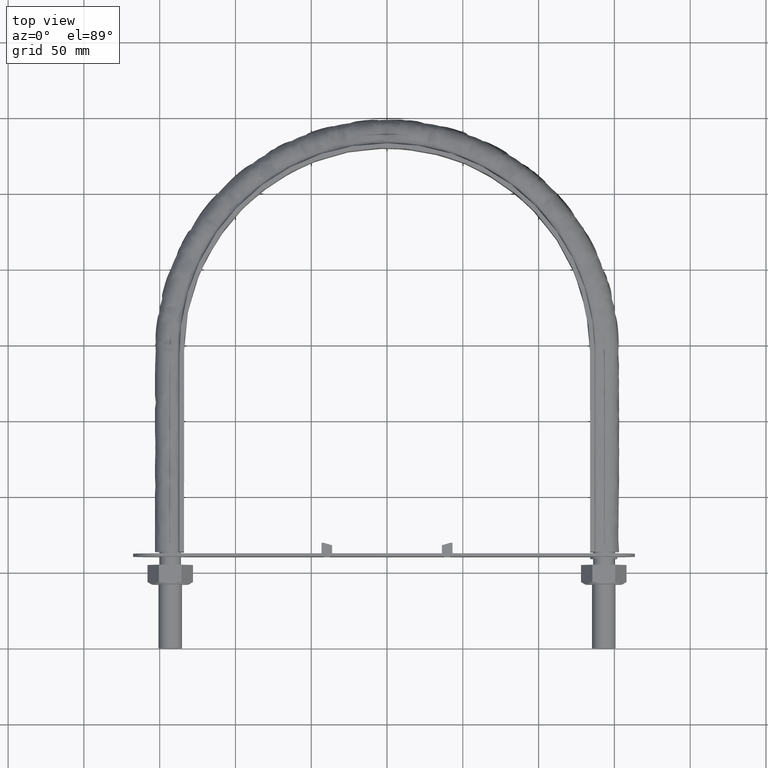
[diagram: clean part render]
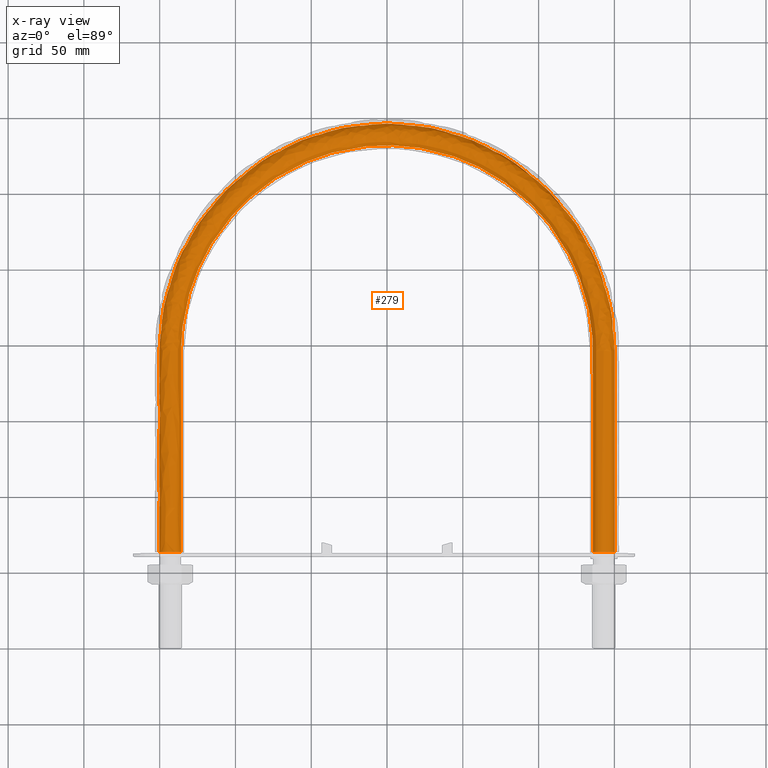
[diagram: x-ray — body ghosted, one internal face saturated and labeled with its STEP entity id]
A machine part, top view, then the same camera in x-ray: the body is ghosted and one INTERNAL B-rep face — a face not visible from any outside direction — is saturated and labeled: STEP entity #279.
In plain terms, the highlighted face is a freeform B-spline surface patch.
Its self-contained STEP definition (entity closure, byte-faithful):
#279 = ADVANCED_FACE( '', ( #391, #392 ), #393, .T. );
#391 = FACE_OUTER_BOUND( '', #1346, .T. );
#392 = FACE_OUTER_BOUND( '', #1347, .T. );
#393 = B_SPLINE_SURFACE_WITH_KNOTS( '', 3, 3, ( ( #1348, #1349, #1350, #1351, #1352, #1353, #1354, #1355, #1356, #1357, #1358, #1359, #1360, #1361, #1362, #1363, #1364 ), ( #1365, #1366, #1367, #1368, #1369, #1370, #1371, #1372, #1373, #1374, #1375, #1376, #1377, #1378, #1379, #1380, #1381 ), ( #1382, #1383, #1384, #1385, #1386, #1387, #1388, #1389, #1390, #1391, #1392, #1393, #1394, #1395, #1396, #1397, #1398 ), ( #1399, #1400, #1401, #1402, #1403, #1404, #1405, #1406, #1407, #1408, #1409, #1410, #1411, #1412, #1413, #1414, #1415 ), ( #1416, #1417, #1418, #1419, #1420, #1421, #1422, #1423, #1424, #1425, #1426, #1427, #1428, #1429, #1430, #1431, #1432 ), ( #1433, #1434, #1435, #1436, #1437, #1438, #1439, #1440, #1441, #1442, #1443, #1444, #1445, #1446, #1447, #1448, #1449 ), ( #1450, #1451, #1452, #1453, #1454, #1455, #1456, #1457, #1458, #1459, #1460, #1461, #1462, #1463, #1464, #1465, #1466 ), ( #1467, #1468, #1469, #1470, #1471, #1472, #1473, #1474, #1475, #1476, #1477, #1478, #1479, #1480, #1481, #1482, #1483 ), ( #1484, #1485, #1486, #1487, #1488, #1489, #1490, #1491, #1492, #1493, #1494, #1495, #1496, #1497, #1498, #1499, #1500 ), ( #1501, #1502, #1503, #1504, #1505, #1506, #1507, #1508, #1509, #1510, #1511, #1512, #1513, #1514, #1515, #1516, #1517 ), ( #1518, #1519, #1520, #1521, #1522, #1523, #1524, #1525, #1526, #1527, #1528, #1529, #1530, #1531, #1532, #1533, #1534 ) ), .UNSPECIFIED., .T., .F., .F., ( 2, 1, 1, 1, 1, 1, 1, 1, 1, 1, 1, 1, 2 ), ( 4, 3, 1, 1, 1, 1, 1, 1, 1, 3, 4 ), ( -0.250000000000000, -0.125000000000000, 0.000000000000000, 0.125000000000000, 0.250000000000000, 0.375000000000000, 0.500000000000000, 0.625000000000000, 0.750000000000000, 0.875000000000000, 1.00000000000000, 1.12500000000000, 1.25000000000000 ), ( 0.000000000000000, 1.00000000000000, 2.00000000000000, 3.00000000000000, 4.00000000000000, 5.00000000000000, 6.00000000000000, 7.00000000000000, 8.00000000000000, 9.00000000000000, 10.0000000000000 ), .UNSPECIFIED. );
#1346 = EDGE_LOOP( '', ( #2007, #2008, #2009, #2010, #2011, #2012, #2013, #2014 ) );
#1347 = EDGE_LOOP( '', ( #2015, #2016, #2017, #2018, #2019, #2020, #2021, #2022 ) );
#1348 = CARTESIAN_POINT( '', ( 137.436357463272, 54.9500000000000, -5.56364253672769 ) );
#1349 = CARTESIAN_POINT( '', ( 137.436357463272, 101.983333333333, -5.56364253672769 ) );
#1350 = CARTESIAN_POINT( '', ( 137.436357463272, 149.016666666667, -5.56364253672769 ) );
#1351 = CARTESIAN_POINT( '', ( 137.436357463272, 196.050000000000, -5.56364253672769 ) );
#1352 = CARTESIAN_POINT( '', ( 137.436357463272, 214.028352444625, -5.56364253672768 ) );
#1353 = CARTESIAN_POINT( '', ( 130.280303553579, 250.018327534897, -5.56364253672768 ) );
#1354 = CARTESIAN_POINT( '', ( 99.7122274668988, 295.761026995728, -5.56364253672770 ) );
#1355 = CARTESIAN_POINT( '', ( 53.9638686419761, 326.330646545342, -5.56364253672768 ) );
#1356 = CARTESIAN_POINT( '', ( 9.67882489103289E-014, 337.064212922238, -5.56364253672769 ) );
#1357 = CARTESIAN_POINT( '', ( -53.9638686419760, 326.330646545342, -5.56364253672769 ) );
#1358 = CARTESIAN_POINT( '', ( -99.7122274668987, 295.761026995728, -5.56364253672768 ) );
#1359 = CARTESIAN_POINT( '', ( -130.280303553579, 250.018327534896, -5.56364253672769 ) );
#1360 = CARTESIAN_POINT( '', ( -137.436357463272, 214.028352444625, -5.56364253672769 ) );
#1361 = CARTESIAN_POINT( '', ( -137.436357463272, 196.050000000000, -5.56364253672769 ) );
#1362 = CARTESIAN_POINT( '', ( -137.436357463272, 149.016666666667, -5.56364253672769 ) );
#1363 = CARTESIAN_POINT( '', ( -137.436357463272, 101.983333333333, -5.56364253672769 ) );
#1364 = CARTESIAN_POINT( '', ( -137.436357463272, 54.9500000000001, -5.56364253672769 ) );
#1365 = CARTESIAN_POINT( '', ( 135.131821268364, 54.9500000000000, 0.000000000000000 ) );
#1366 = CARTESIAN_POINT( '', ( 135.131821268364, 101.983333333333, 0.000000000000000 ) );
#1367 = CARTESIAN_POINT( '', ( 135.131821268364, 149.016666666667, 0.000000000000000 ) );
#1368 = CARTESIAN_POINT( '', ( 135.131821268364, 196.050000000000, 0.000000000000000 ) );
#1369 = CARTESIAN_POINT( '', ( 135.131821268364, 213.722751944464, 0.000000000000000 ) );
#1370 = CARTESIAN_POINT( '', ( 128.095760245211, 249.115307002900, 0.000000000000000 ) );
#1371 = CARTESIAN_POINT( '', ( 98.0402504041058, 294.088552681494, 0.000000000000000 ) );
#1372 = CARTESIAN_POINT( '', ( 53.0590011760586, 324.146245308814, 0.000000000000000 ) );
#1373 = CARTESIAN_POINT( '', ( 1.03437571945879E-013, 334.699609248139, 0.000000000000000 ) );
#1374 = CARTESIAN_POINT( '', ( -53.0590011760586, 324.146245308814, 0.000000000000000 ) );
#1375 = CARTESIAN_POINT( '', ( -98.0402504041056, 294.088552681494, 0.000000000000000 ) );
#1376 = CARTESIAN_POINT( '', ( -128.095760245211, 249.115307002900, 0.000000000000000 ) );
#1377 = CARTESIAN_POINT( '', ( -135.131821268364, 213.722751944464, 0.000000000000000 ) );
#1378 = CARTESIAN_POINT( '', ( -135.131821268364, 196.050000000000, 0.000000000000000 ) );
#1379 = CARTESIAN_POINT( '', ( -135.131821268364, 149.016666666667, 0.000000000000000 ) );
#1380 = CARTESIAN_POINT( '', ( -135.131821268364, 101.983333333333, 0.000000000000000 ) );
#1381 = CARTESIAN_POINT( '', ( -135.131821268364, 54.9500000000001, 0.000000000000000 ) );
#1382 = CARTESIAN_POINT( '', ( 137.436357463272, 54.9500000000000, 5.56364253672769 ) );
#1383 = CARTESIAN_POINT( '', ( 137.436357463272, 101.983333333333, 5.56364253672769 ) );
#1384 = CARTESIAN_POINT( '', ( 137.436357463272, 149.016666666667, 5.56364253672769 ) );
#1385 = CARTESIAN_POINT( '', ( 137.436357463272, 196.050000000000, 5.56364253672769 ) );
#1386 = CARTESIAN_POINT( '', ( 137.436357463272, 214.028352444625, 5.56364253672769 ) );
#1387 = CARTESIAN_POINT( '', ( 130.280303553579, 250.018327534897, 5.56364253672769 ) );
#1388 = CARTESIAN_POINT( '', ( 99.7122274668988, 295.761026995728, 5.56364253672770 ) );
#1389 = CARTESIAN_POINT( '', ( 53.9638686419761, 326.330646545342, 5.56364253672768 ) );
#1390 = CARTESIAN_POINT( '', ( 1.00257695862283E-013, 337.064212922238, 5.56364253672769 ) );
#1391 = CARTESIAN_POINT( '', ( -53.9638686419760, 326.330646545342, 5.56364253672769 ) );
#1392 = CARTESIAN_POINT( '', ( -99.7122274668987, 295.761026995728, 5.56364253672769 ) );
#1393 = CARTESIAN_POINT( '', ( -130.280303553579, 250.018327534896, 5.56364253672769 ) );
#1394 = CARTESIAN_POINT( '', ( -137.436357463272, 214.028352444625, 5.56364253672769 ) );
#1395 = CARTESIAN_POINT( '', ( -137.436357463272, 196.050000000000, 5.56364253672769 ) );
#1396 = CARTESIAN_POINT( '', ( -137.436357463272, 149.016666666667, 5.56364253672769 ) );
#1397 = CARTESIAN_POINT( '', ( -137.436357463272, 101.983333333333, 5.56364253672769 ) );
#1398 = CARTESIAN_POINT( '', ( -137.436357463272, 54.9500000000001, 5.56364253672769 ) );
#1399 = CARTESIAN_POINT( '', ( 143.000000000000, 54.9500000000000, 7.86817873163615 ) );
#1400 = CARTESIAN_POINT( '', ( 143.000000000000, 101.983333333333, 7.86817873163615 ) );
#1401 = CARTESIAN_POINT( '', ( 143.000000000000, 149.016666666667, 7.86817873163615 ) );
#1402 = CARTESIAN_POINT( '', ( 143.000000000000, 196.050000000000, 7.86817873163615 ) );
#1403 = CARTESIAN_POINT( '', ( 143.000000000000, 214.766137316781, 7.86817873163615 ) );
#1404 = CARTESIAN_POINT( '', ( 135.554257636233, 252.198411950344, 7.86817873163615 ) );
#1405 = CARTESIAN_POINT( '', ( 103.748737167870, 299.798737167870, 7.86817873163616 ) );
#1406 = CARTESIAN_POINT( '', ( 56.1484119503442, 331.604257636232, 7.86817873163614 ) );
#1407 = CARTESIAN_POINT( '', ( 9.40178878760316E-014, 342.772871181884, 7.86817873163615 ) );
#1408 = CARTESIAN_POINT( '', ( -56.1484119503442, 331.604257636232, 7.86817873163616 ) );
#1409 = CARTESIAN_POINT( '', ( -103.748737167870, 299.798737167870, 7.86817873163615 ) );
#1410 = CARTESIAN_POINT( '', ( -135.554257636232, 252.198411950344, 7.86817873163615 ) );
#1411 = CARTESIAN_POINT( '', ( -143.000000000000, 214.766137316781, 7.86817873163615 ) );
#1412 = CARTESIAN_POINT( '', ( -143.000000000000, 196.050000000000, 7.86817873163615 ) );
#1413 = CARTESIAN_POINT( '', ( -143.000000000000, 149.016666666667, 7.86817873163615 ) );
#1414 = CARTESIAN_POINT( '', ( -143.000000000000, 101.983333333333, 7.86817873163615 ) );
#1415 = CARTESIAN_POINT( '', ( -143.000000000000, 54.9500000000001, 7.86817873163615 ) );
#1416 = CARTESIAN_POINT( '', ( 148.563642536728, 54.9500000000000, 5.56364253672769 ) );
#1417 = CARTESIAN_POINT( '', ( 148.563642536728, 101.983333333333, 5.56364253672769 ) );
#1418 = CARTESIAN_POINT( '', ( 148.563642536728, 149.016666666667, 5.56364253672769 ) );
#1419 = CARTESIAN_POINT( '', ( 148.563642536728, 196.050000000000, 5.56364253672769 ) );
#1420 = CARTESIAN_POINT( '', ( 148.563642536728, 215.503922188938, 5.56364253672769 ) );
#1421 = CARTESIAN_POINT( '', ( 140.828211718886, 254.378496365792, 5.56364253672769 ) );
#1422 = CARTESIAN_POINT( '', ( 107.785246868842, 303.836447340013, 5.56364253672770 ) );
#1423 = CARTESIAN_POINT( '', ( 58.3329552587123, 336.877868727123, 5.56364253672768 ) );
#1424 = CARTESIAN_POINT( '', ( 8.43086329378271E-014, 348.481529441530, 5.56364253672769 ) );
#1425 = CARTESIAN_POINT( '', ( -58.3329552587123, 336.877868727123, 5.56364253672769 ) );
#1426 = CARTESIAN_POINT( '', ( -107.785246868842, 303.836447340013, 5.56364253672769 ) );
#1427 = CARTESIAN_POINT( '', ( -140.828211718886, 254.378496365792, 5.56364253672769 ) );
#1428 = CARTESIAN_POINT( '', ( -148.563642536728, 215.503922188938, 5.56364253672769 ) );
#1429 = CARTESIAN_POINT( '', ( -148.563642536728, 196.050000000000, 5.56364253672769 ) );
#1430 = CARTESIAN_POINT( '', ( -148.563642536728, 149.016666666667, 5.56364253672769 ) );
#1431 = CARTESIAN_POINT( '', ( -148.563642536728, 101.983333333333, 5.56364253672769 ) );
#1432 = CARTESIAN_POINT( '', ( -148.563642536728, 54.9500000000001, 5.56364253672769 ) );
#1433 = CARTESIAN_POINT( '', ( 150.868178731636, 54.9500000000000, 9.63542166777172E-016 ) );
#1434 = CARTESIAN_POINT( '', ( 150.868178731636, 101.983333333333, 9.63542166777172E-016 ) );
#1435 = CARTESIAN_POINT( '', ( 150.868178731636, 149.016666666667, 9.63542166777172E-016 ) );
#1436 = CARTESIAN_POINT( '', ( 150.868178731636, 196.050000000000, 9.63542166777172E-016 ) );
#1437 = CARTESIAN_POINT( '', ( 150.868178731636, 215.809522689099, 9.63542166777172E-016 ) );
#1438 = CARTESIAN_POINT( '', ( 143.012755027254, 255.281516897789, 9.63542166777172E-016 ) );
#1439 = CARTESIAN_POINT( '', ( 109.457223931635, 305.508921654246, 9.63542166777174E-016 ) );
#1440 = CARTESIAN_POINT( '', ( 59.2378227246298, 339.062269963651, 9.63542166777171E-016 ) );
#1441 = CARTESIAN_POINT( '', ( 8.11287568542308E-014, 350.846133115629, 9.63542166777172E-016 ) );
#1442 = CARTESIAN_POINT( '', ( -59.2378227246298, 339.062269963651, 9.63542166777173E-016 ) );
#1443 = CARTESIAN_POINT( '', ( -109.457223931635, 305.508921654246, 9.63542166777172E-016 ) );
#1444 = CARTESIAN_POINT( '', ( -143.012755027254, 255.281516897788, 9.63542166777172E-016 ) );
#1445 = CARTESIAN_POINT( '', ( -150.868178731636, 215.809522689099, 9.63542166777172E-016 ) );
#1446 = CARTESIAN_POINT( '', ( -150.868178731636, 196.050000000000, 9.63542166777172E-016 ) );
#1447 = CARTESIAN_POINT( '', ( -150.868178731636, 149.016666666667, 9.63542166777172E-016 ) );
#1448 = CARTESIAN_POINT( '', ( -150.868178731636, 101.983333333333, 9.63542166777172E-016 ) );
#1449 = CARTESIAN_POINT( '', ( -150.868178731636, 54.9500000000001, 9.63542166777172E-016 ) );
#1450 = CARTESIAN_POINT( '', ( 148.563642536728, 54.9500000000000, -5.56364253672769 ) );
#1451 = CARTESIAN_POINT( '', ( 148.563642536728, 101.983333333333, -5.56364253672769 ) );
#1452 = CARTESIAN_POINT( '', ( 148.563642536728, 149.016666666667, -5.56364253672769 ) );
#1453 = CARTESIAN_POINT( '', ( 148.563642536728, 196.050000000000, -5.56364253672769 ) );
#1454 = CARTESIAN_POINT( '', ( 148.563642536728, 215.503922188938, -5.56364253672769 ) );
#1455 = CARTESIAN_POINT( '', ( 140.828211718886, 254.378496365792, -5.56364253672769 ) );
#1456 = CARTESIAN_POINT( '', ( 107.785246868842, 303.836447340013, -5.56364253672770 ) );
#1457 = CARTESIAN_POINT( '', ( 58.3329552587123, 336.877868727123, -5.56364253672768 ) );
#1458 = CARTESIAN_POINT( '', ( 8.43086329378271E-014, 348.481529441530, -5.56364253672769 ) );
#1459 = CARTESIAN_POINT( '', ( -58.3329552587123, 336.877868727123, -5.56364253672769 ) );
#1460 = CARTESIAN_POINT( '', ( -107.785246868842, 303.836447340013, -5.56364253672769 ) );
#1461 = CARTESIAN_POINT( '', ( -140.828211718886, 254.378496365792, -5.56364253672769 ) );
#1462 = CARTESIAN_POINT( '', ( -148.563642536728, 215.503922188938, -5.56364253672769 ) );
#1463 = CARTESIAN_POINT( '', ( -148.563642536728, 196.050000000000, -5.56364253672769 ) );
#1464 = CARTESIAN_POINT( '', ( -148.563642536728, 149.016666666667, -5.56364253672769 ) );
#1465 = CARTESIAN_POINT( '', ( -148.563642536728, 101.983333333333, -5.56364253672769 ) );
#1466 = CARTESIAN_POINT( '', ( -148.563642536728, 54.9500000000001, -5.56364253672769 ) );
#1467 = CARTESIAN_POINT( '', ( 143.000000000000, 54.9500000000000, -7.86817873163615 ) );
#1468 = CARTESIAN_POINT( '', ( 143.000000000000, 101.983333333333, -7.86817873163615 ) );
#1469 = CARTESIAN_POINT( '', ( 143.000000000000, 149.016666666667, -7.86817873163615 ) );
#1470 = CARTESIAN_POINT( '', ( 143.000000000000, 196.050000000000, -7.86817873163615 ) );
#1471 = CARTESIAN_POINT( '', ( 143.000000000000, 214.766137316781, -7.86817873163615 ) );
#1472 = CARTESIAN_POINT( '', ( 135.554257636233, 252.198411950344, -7.86817873163615 ) );
#1473 = CARTESIAN_POINT( '', ( 103.748737167870, 299.798737167870, -7.86817873163616 ) );
#1474 = CARTESIAN_POINT( '', ( 56.1484119503442, 331.604257636232, -7.86817873163614 ) );
#1475 = CARTESIAN_POINT( '', ( 9.40178878760316E-014, 342.772871181884, -7.86817873163615 ) );
#1476 = CARTESIAN_POINT( '', ( -56.1484119503442, 331.604257636232, -7.86817873163616 ) );
#1477 = CARTESIAN_POINT( '', ( -103.748737167870, 299.798737167870, -7.86817873163615 ) );
#1478 = CARTESIAN_POINT( '', ( -135.554257636232, 252.198411950344, -7.86817873163615 ) );
#1479 = CARTESIAN_POINT( '', ( -143.000000000000, 214.766137316781, -7.86817873163615 ) );
#1480 = CARTESIAN_POINT( '', ( -143.000000000000, 196.050000000000, -7.86817873163615 ) );
#1481 = CARTESIAN_POINT( '', ( -143.000000000000, 149.016666666667, -7.86817873163615 ) );
#1482 = CARTESIAN_POINT( '', ( -143.000000000000, 101.983333333333, -7.86817873163615 ) );
#1483 = CARTESIAN_POINT( '', ( -143.000000000000, 54.9500000000001, -7.86817873163615 ) );
#1484 = CARTESIAN_POINT( '', ( 137.436357463272, 54.9500000000000, -5.56364253672769 ) );
#1485 = CARTESIAN_POINT( '', ( 137.436357463272, 101.983333333333, -5.56364253672769 ) );
#1486 = CARTESIAN_POINT( '', ( 137.436357463272, 149.016666666667, -5.56364253672769 ) );
#1487 = CARTESIAN_POINT( '', ( 137.436357463272, 196.050000000000, -5.56364253672769 ) );
#1488 = CARTESIAN_POINT( '', ( 137.436357463272, 214.028352444625, -5.56364253672768 ) );
#1489 = CARTESIAN_POINT( '', ( 130.280303553579, 250.018327534897, -5.56364253672768 ) );
#1490 = CARTESIAN_POINT( '', ( 99.7122274668988, 295.761026995728, -5.56364253672770 ) );
#1491 = CARTESIAN_POINT( '', ( 53.9638686419761, 326.330646545342, -5.56364253672768 ) );
#1492 = CARTESIAN_POINT( '', ( 9.67882489103289E-014, 337.064212922238, -5.56364253672769 ) );
#1493 = CARTESIAN_POINT( '', ( -53.9638686419760, 326.330646545342, -5.56364253672769 ) );
#1494 = CARTESIAN_POINT( '', ( -99.7122274668987, 295.761026995728, -5.56364253672768 ) );
#1495 = CARTESIAN_POINT( '', ( -130.280303553579, 250.018327534896, -5.56364253672769 ) );
#1496 = CARTESIAN_POINT( '', ( -137.436357463272, 214.028352444625, -5.56364253672769 ) );
#1497 = CARTESIAN_POINT( '', ( -137.436357463272, 196.050000000000, -5.56364253672769 ) );
#1498 = CARTESIAN_POINT( '', ( -137.436357463272, 149.016666666667, -5.56364253672769 ) );
#1499 = CARTESIAN_POINT( '', ( -137.436357463272, 101.983333333333, -5.56364253672769 ) );
#1500 = CARTESIAN_POINT( '', ( -137.436357463272, 54.9500000000001, -5.56364253672769 ) );
#1501 = CARTESIAN_POINT( '', ( 135.131821268364, 54.9500000000000, 0.000000000000000 ) );
#1502 = CARTESIAN_POINT( '', ( 135.131821268364, 101.983333333333, 0.000000000000000 ) );
#1503 = CARTESIAN_POINT( '', ( 135.131821268364, 149.016666666667, 0.000000000000000 ) );
#1504 = CARTESIAN_POINT( '', ( 135.131821268364, 196.050000000000, 0.000000000000000 ) );
#1505 = CARTESIAN_POINT( '', ( 135.131821268364, 213.722751944464, 0.000000000000000 ) );
#1506 = CARTESIAN_POINT( '', ( 128.095760245211, 249.115307002900, 0.000000000000000 ) );
#1507 = CARTESIAN_POINT( '', ( 98.0402504041058, 294.088552681494, 0.000000000000000 ) );
#1508 = CARTESIAN_POINT( '', ( 53.0590011760586, 324.146245308814, 0.000000000000000 ) );
#1509 = CARTESIAN_POINT( '', ( 1.03437571945879E-013, 334.699609248139, 0.000000000000000 ) );
#1510 = CARTESIAN_POINT( '', ( -53.0590011760586, 324.146245308814, 0.000000000000000 ) );
#1511 = CARTESIAN_POINT( '', ( -98.0402504041056, 294.088552681494, 0.000000000000000 ) );
#1512 = CARTESIAN_POINT( '', ( -128.095760245211, 249.115307002900, 0.000000000000000 ) );
#1513 = CARTESIAN_POINT( '', ( -135.131821268364, 213.722751944464, 0.000000000000000 ) );
#1514 = CARTESIAN_POINT( '', ( -135.131821268364, 196.050000000000, 0.000000000000000 ) );
#1515 = CARTESIAN_POINT( '', ( -135.131821268364, 149.016666666667, 0.000000000000000 ) );
#1516 = CARTESIAN_POINT( '', ( -135.131821268364, 101.983333333333, 0.000000000000000 ) );
#1517 = CARTESIAN_POINT( '', ( -135.131821268364, 54.9500000000001, 0.000000000000000 ) );
#1518 = CARTESIAN_POINT( '', ( 137.436357463272, 54.9500000000000, 5.56364253672769 ) );
#1519 = CARTESIAN_POINT( '', ( 137.436357463272, 101.983333333333, 5.56364253672769 ) );
#1520 = CARTESIAN_POINT( '', ( 137.436357463272, 149.016666666667, 5.56364253672769 ) );
#1521 = CARTESIAN_POINT( '', ( 137.436357463272, 196.050000000000, 5.56364253672769 ) );
#1522 = CARTESIAN_POINT( '', ( 137.436357463272, 214.028352444625, 5.56364253672769 ) );
#1523 = CARTESIAN_POINT( '', ( 130.280303553579, 250.018327534897, 5.56364253672769 ) );
#1524 = CARTESIAN_POINT( '', ( 99.7122274668988, 295.761026995728, 5.56364253672770 ) );
#1525 = CARTESIAN_POINT( '', ( 53.9638686419761, 326.330646545342, 5.56364253672768 ) );
#1526 = CARTESIAN_POINT( '', ( 1.00257695862283E-013, 337.064212922238, 5.56364253672769 ) );
#1527 = CARTESIAN_POINT( '', ( -53.9638686419760, 326.330646545342, 5.56364253672769 ) );
#1528 = CARTESIAN_POINT( '', ( -99.7122274668987, 295.761026995728, 5.56364253672769 ) );
#1529 = CARTESIAN_POINT( '', ( -130.280303553579, 250.018327534896, 5.56364253672769 ) );
#1530 = CARTESIAN_POINT( '', ( -137.436357463272, 214.028352444625, 5.56364253672769 ) );
#1531 = CARTESIAN_POINT( '', ( -137.436357463272, 196.050000000000, 5.56364253672769 ) );
#1532 = CARTESIAN_POINT( '', ( -137.436357463272, 149.016666666667, 5.56364253672769 ) );
#1533 = CARTESIAN_POINT( '', ( -137.436357463272, 101.983333333333, 5.56364253672769 ) );
#1534 = CARTESIAN_POINT( '', ( -137.436357463272, 54.9500000000001, 5.56364253672769 ) );
#2007 = ORIENTED_EDGE( '', *, *, #2615, .T. );
#2008 = ORIENTED_EDGE( '', *, *, #2616, .T. );
#2009 = ORIENTED_EDGE( '', *, *, #2617, .T. );
#2010 = ORIENTED_EDGE( '', *, *, #2618, .T. );
#2011 = ORIENTED_EDGE( '', *, *, #2619, .T. );
#2012 = ORIENTED_EDGE( '', *, *, #2620, .T. );
#2013 = ORIENTED_EDGE( '', *, *, #2614, .T. );
#2014 = ORIENTED_EDGE( '', *, *, #2613, .T. );
#2015 = ORIENTED_EDGE( '', *, *, #2621, .T. );
#2016 = ORIENTED_EDGE( '', *, *, #2622, .T. );
#2017 = ORIENTED_EDGE( '', *, *, #2623, .T. );
#2018 = ORIENTED_EDGE( '', *, *, #2624, .T. );
#2019 = ORIENTED_EDGE( '', *, *, #2625, .T. );
#2020 = ORIENTED_EDGE( '', *, *, #2626, .T. );
#2021 = ORIENTED_EDGE( '', *, *, #2627, .T. );
#2022 = ORIENTED_EDGE( '', *, *, #2628, .T. );
#2613 = EDGE_CURVE( '', #2811, #2810, #2828, .T. );
#2614 = EDGE_CURVE( '', #2813, #2811, #2829, .T. );
#2615 = EDGE_CURVE( '', #2810, #2823, #2830, .T. );
#2616 = EDGE_CURVE( '', #2823, #2821, #2831, .T. );
#2617 = EDGE_CURVE( '', #2821, #2819, #2832, .T. );
#2618 = EDGE_CURVE( '', #2819, #2817, #2833, .T. );
#2619 = EDGE_CURVE( '', #2817, #2815, #2834, .T. );
#2620 = EDGE_CURVE( '', #2815, #2813, #2835, .T. );
#2621 = EDGE_CURVE( '', #2836, #2837, #2838, .T. );
#2622 = EDGE_CURVE( '', #2837, #2839, #2840, .T. );
#2623 = EDGE_CURVE( '', #2839, #2841, #2842, .T. );
#2624 = EDGE_CURVE( '', #2841, #2843, #2844, .T. );
#2625 = EDGE_CURVE( '', #2843, #2845, #2846, .T. );
#2626 = EDGE_CURVE( '', #2845, #2847, #2848, .T. );
#2627 = EDGE_CURVE( '', #2847, #2849, #2850, .T. );
#2628 = EDGE_CURVE( '', #2849, #2836, #2851, .T. );
#2810 = VERTEX_POINT( '', #3576 );
#2811 = VERTEX_POINT( '', #3577 );
#2813 = VERTEX_POINT( '', #3579 );
#2815 = VERTEX_POINT( '', #3581 );
#2817 = VERTEX_POINT( '', #3583 );
#2819 = VERTEX_POINT( '', #3585 );
#2821 = VERTEX_POINT( '', #3587 );
#2823 = VERTEX_POINT( '', #3589 );
#2828 = B_SPLINE_CURVE_WITH_KNOTS( '', 3, ( #3594, #3595, #3596, #3597 ), .UNSPECIFIED., .F., .F., ( 4, 4 ), ( 0.0388191151159619, 0.0443582160703923 ), .UNSPECIFIED. );
#2829 = B_SPLINE_CURVE_WITH_KNOTS( '', 3, ( #3598, #3599, #3600, #3601 ), .UNSPECIFIED., .F., .F., ( 4, 4 ), ( 0.0332788337562376, 0.0388191151159619 ), .UNSPECIFIED. );
#2830 = B_SPLINE_CURVE_WITH_KNOTS( '', 3, ( #3602, #3603, #3604, #3605 ), .UNSPECIFIED., .F., .F., ( 4, 4 ), ( 9.71445146547012E-017, 0.00554405993452459 ), .UNSPECIFIED. );
#2831 = B_SPLINE_CURVE_WITH_KNOTS( '', 3, ( #3606, #3607, #3608, #3609 ), .UNSPECIFIED., .F., .F., ( 4, 4 ), ( 0.00554405993452459, 0.0110956052857248 ), .UNSPECIFIED. );
#2832 = B_SPLINE_CURVE_WITH_KNOTS( '', 3, ( #3610, #3611, #3612, #3613 ), .UNSPECIFIED., .F., .F., ( 4, 4 ), ( 0.0110956052857248, 0.0166408835703285 ), .UNSPECIFIED. );
#2833 = B_SPLINE_CURVE_WITH_KNOTS( '', 3, ( #3614, #3615, #3616, #3617 ), .UNSPECIFIED., .F., .F., ( 4, 4 ), ( 0.0166408835703285, 0.0221823261550820 ), .UNSPECIFIED. );
#2834 = B_SPLINE_CURVE_WITH_KNOTS( '', 3, ( #3618, #3619, #3620, #3621 ), .UNSPECIFIED., .F., .F., ( 4, 4 ), ( 0.0221823261550820, 0.0277332197883477 ), .UNSPECIFIED. );
#2835 = B_SPLINE_CURVE_WITH_KNOTS( '', 3, ( #3622, #3623, #3624, #3625 ), .UNSPECIFIED., .F., .F., ( 4, 4 ), ( 0.0277332197883477, 0.0332788337562376 ), .UNSPECIFIED. );
#2836 = VERTEX_POINT( '', #3626 );
#2837 = VERTEX_POINT( '', #3627 );
#2838 = B_SPLINE_CURVE_WITH_KNOTS( '', 3, ( #3628, #3629, #3630, #3631 ), .UNSPECIFIED., .F., .F., ( 4, 4 ), ( 0.000000000000000, 0.00554405993452340 ), .UNSPECIFIED. );
#2839 = VERTEX_POINT( '', #3632 );
#2840 = B_SPLINE_CURVE_WITH_KNOTS( '', 3, ( #3633, #3634, #3635, #3636 ), .UNSPECIFIED., .F., .F., ( 4, 4 ), ( 0.00554405993452340, 0.0110956052857256 ), .UNSPECIFIED. );
#2841 = VERTEX_POINT( '', #3637 );
#2842 = B_SPLINE_CURVE_WITH_KNOTS( '', 3, ( #3638, #3639, #3640, #3641 ), .UNSPECIFIED., .F., .F., ( 4, 4 ), ( 0.0110956052857256, 0.0166408835703302 ), .UNSPECIFIED. );
#2843 = VERTEX_POINT( '', #3642 );
#2844 = B_SPLINE_CURVE_WITH_KNOTS( '', 3, ( #3643, #3644, #3645, #3646 ), .UNSPECIFIED., .F., .F., ( 4, 4 ), ( 0.0166408835703302, 0.0221823261550826 ), .UNSPECIFIED. );
#2845 = VERTEX_POINT( '', #3647 );
#2846 = B_SPLINE_CURVE_WITH_KNOTS( '', 3, ( #3648, #3649, #3650, #3651 ), .UNSPECIFIED., .F., .F., ( 4, 4 ), ( 0.0221823261550826, 0.0277332197883479 ), .UNSPECIFIED. );
#2847 = VERTEX_POINT( '', #3652 );
#2848 = B_SPLINE_CURVE_WITH_KNOTS( '', 3, ( #3653, #3654, #3655, #3656 ), .UNSPECIFIED., .F., .F., ( 4, 4 ), ( 0.0277332197883479, 0.0332788337562375 ), .UNSPECIFIED. );
#2849 = VERTEX_POINT( '', #3657 );
#2850 = B_SPLINE_CURVE_WITH_KNOTS( '', 3, ( #3658, #3659, #3660, #3661 ), .UNSPECIFIED., .F., .F., ( 4, 4 ), ( 0.0332788337562375, 0.0388191151159523 ), .UNSPECIFIED. );
#2851 = B_SPLINE_CURVE_WITH_KNOTS( '', 3, ( #3662, #3663, #3664, #3665 ), .UNSPECIFIED., .F., .F., ( 4, 4 ), ( 0.0388191151159523, 0.0443582160703930 ), .UNSPECIFIED. );
#3576 = CARTESIAN_POINT( '', ( -135.900000000000, 63.5000000000003, 8.91193411066284E-014 ) );
#3577 = CARTESIAN_POINT( '', ( -137.979541853585, 63.5000000000001, 5.02045814643423 ) );
#3579 = CARTESIAN_POINT( '', ( -143.000000000000, 63.5000000000001, 7.09999999999998 ) );
#3581 = CARTESIAN_POINT( '', ( -148.020458146425, 63.5000000000001, 5.02045814642393 ) );
#3583 = CARTESIAN_POINT( '', ( -150.100000000000, 63.5000000000001, 1.31168007283358E-014 ) );
#3585 = CARTESIAN_POINT( '', ( -148.020458146434, 63.5000000000001, -5.02045814641448 ) );
#3587 = CARTESIAN_POINT( '', ( -143.000000000000, 63.5000000000001, -7.10000000000001 ) );
#3589 = CARTESIAN_POINT( '', ( -137.979541853575, 63.5000000000001, -5.02045814642433 ) );
#3594 = CARTESIAN_POINT( '', ( -137.979541853585, 63.5000000000002, 5.02045814643422 ) );
#3595 = CARTESIAN_POINT( '', ( -136.668178731640, 63.5000000000002, 3.70909502449430 ) );
#3596 = CARTESIAN_POINT( '', ( -135.900000000000, 63.5000000000002, 1.85454751224715 ) );
#3597 = CARTESIAN_POINT( '', ( -135.900000000000, 63.5000000000002, 4.33680868994202E-016 ) );
#3598 = CARTESIAN_POINT( '', ( -143.000000000005, 63.5000000000000, 7.09999999999984 ) );
#3599 = CARTESIAN_POINT( '', ( -141.145452487764, 63.5000000000000, 7.10000000000091 ) );
#3600 = CARTESIAN_POINT( '', ( -139.290904975524, 63.5000000000000, 6.33182126836762 ) );
#3601 = CARTESIAN_POINT( '', ( -137.979541853585, 63.5000000000000, 5.02045814643423 ) );
#3602 = CARTESIAN_POINT( '', ( -135.900000000000, 63.5000000000002, 8.27246257606440E-014 ) );
#3603 = CARTESIAN_POINT( '', ( -135.900000000000, 63.5000000000002, -1.85454751224245 ) );
#3604 = CARTESIAN_POINT( '', ( -136.668178731636, 63.5000000000002, -3.70909502448497 ) );
#3605 = CARTESIAN_POINT( '', ( -137.979541853575, 63.5000000000002, -5.02045814642432 ) );
#3606 = CARTESIAN_POINT( '', ( -137.979541853575, 63.5000000000002, -5.02045814642434 ) );
#3607 = CARTESIAN_POINT( '', ( -139.290904975515, 63.5000000000002, -6.33182126836380 ) );
#3608 = CARTESIAN_POINT( '', ( -141.145452487757, 63.5000000000003, -7.10000000000001 ) );
#3609 = CARTESIAN_POINT( '', ( -143.000000000000, 63.5000000000003, -7.10000000000000 ) );
#3610 = CARTESIAN_POINT( '', ( -143.000000000005, 63.5000000000002, -7.10000000000016 ) );
#3611 = CARTESIAN_POINT( '', ( -144.854547512250, 63.5000000000002, -7.09999999999900 ) );
#3612 = CARTESIAN_POINT( '', ( -146.709095024495, 63.5000000000003, -6.33182126835991 ) );
#3613 = CARTESIAN_POINT( '', ( -148.020458146434, 63.5000000000003, -5.02045814641446 ) );
#3614 = CARTESIAN_POINT( '', ( -148.020458146435, 63.5000000000003, -5.02045814641445 ) );
#3615 = CARTESIAN_POINT( '', ( -149.331821268368, 63.5000000000003, -3.70909502447566 ) );
#3616 = CARTESIAN_POINT( '', ( -150.100000000000, 63.5000000000003, -1.85454751223782 ) );
#3617 = CARTESIAN_POINT( '', ( -150.100000000000, 63.5000000000003, 3.06996961838161E-014 ) );
#3618 = CARTESIAN_POINT( '', ( -150.100000000000, 63.5000000000003, -2.43278192803271E-013 ) );
#3619 = CARTESIAN_POINT( '', ( -150.100000000000, 63.5000000000003, 1.85454751224220 ) );
#3620 = CARTESIAN_POINT( '', ( -149.331821268364, 63.5000000000003, 3.70909502448463 ) );
#3621 = CARTESIAN_POINT( '', ( -148.020458146425, 63.5000000000003, 5.02045814642395 ) );
#3622 = CARTESIAN_POINT( '', ( -148.020458146425, 63.5000000000000, 5.02045814642398 ) );
#3623 = CARTESIAN_POINT( '', ( -146.709095024486, 63.5000000000000, 6.33182126836367 ) );
#3624 = CARTESIAN_POINT( '', ( -144.854547512243, 63.5000000000000, 7.10000000000003 ) );
#3625 = CARTESIAN_POINT( '', ( -143.000000000000, 63.5000000000000, 7.10000000000000 ) );
#3626 = CARTESIAN_POINT( '', ( 135.900000000000, 63.5000000000001, 4.33680868994202E-016 ) );
#3627 = CARTESIAN_POINT( '', ( 137.979541853574, 63.5000000000000, 5.02045814642340 ) );
#3628 = CARTESIAN_POINT( '', ( 135.900000000000, 63.5000000000001, 4.33680868994202E-016 ) );
#3629 = CARTESIAN_POINT( '', ( 135.900000000000, 63.5000000000001, 1.85454751224207 ) );
#3630 = CARTESIAN_POINT( '', ( 136.668178731636, 63.5000000000001, 3.70909502448414 ) );
#3631 = CARTESIAN_POINT( '', ( 137.979541853574, 63.5000000000001, 5.02045814642344 ) );
#3632 = CARTESIAN_POINT( '', ( 143.000000000001, 63.5000000000000, 7.09999999999998 ) );
#3633 = CARTESIAN_POINT( '', ( 137.979541853574, 63.5000000000001, 5.02045814642344 ) );
#3634 = CARTESIAN_POINT( '', ( 139.290904975514, 63.5000000000001, 6.33182126836357 ) );
#3635 = CARTESIAN_POINT( '', ( 141.145452487757, 63.5000000000001, 7.10000000000005 ) );
#3636 = CARTESIAN_POINT( '', ( 143.000000000000, 63.5000000000001, 7.10000000000001 ) );
#3637 = CARTESIAN_POINT( '', ( 148.020458146435, 63.5000000000000, 5.02045814641363 ) );
#3638 = CARTESIAN_POINT( '', ( 143.000000000001, 63.5000000000001, 7.10000000000000 ) );
#3639 = CARTESIAN_POINT( '', ( 144.854547512248, 63.5000000000001, 7.09999999999983 ) );
#3640 = CARTESIAN_POINT( '', ( 146.709095024496, 63.5000000000001, 6.33182126835941 ) );
#3641 = CARTESIAN_POINT( '', ( 148.020458146436, 63.5000000000001, 5.02045814641344 ) );
#3642 = CARTESIAN_POINT( '', ( 150.100000000000, 63.5000000000000, -1.94406258669302E-014 ) );
#3643 = CARTESIAN_POINT( '', ( 148.020458146435, 63.5000000000001, 5.02045814641366 ) );
#3644 = CARTESIAN_POINT( '', ( 149.331821268368, 63.5000000000001, 3.70909502447491 ) );
#3645 = CARTESIAN_POINT( '', ( 150.100000000001, 63.5000000000001, 1.85454751223488 ) );
#3646 = CARTESIAN_POINT( '', ( 150.100000000000, 63.5000000000001, -5.56448845036977E-012 ) );
#3647 = CARTESIAN_POINT( '', ( 148.020458146425, 63.5000000000000, -5.02045814642358 ) );
#3648 = CARTESIAN_POINT( '', ( 150.100000000000, 63.5000000000001, -3.37563280867296E-014 ) );
#3649 = CARTESIAN_POINT( '', ( 150.100000000000, 63.5000000000001, -1.85454751224216 ) );
#3650 = CARTESIAN_POINT( '', ( 149.331821268364, 63.5000000000001, -3.70909502448430 ) );
#3651 = CARTESIAN_POINT( '', ( 148.020458146425, 63.5000000000001, -5.02045814642360 ) );
#3652 = CARTESIAN_POINT( '', ( 143.000000000001, 63.5000000000000, -7.10000000000001 ) );
#3653 = CARTESIAN_POINT( '', ( 148.020458146425, 63.5000000000001, -5.02045814642359 ) );
#3654 = CARTESIAN_POINT( '', ( 146.709095024486, 63.5000000000001, -6.33182126836333 ) );
#3655 = CARTESIAN_POINT( '', ( 144.854547512244, 63.5000000000001, -7.09999999999972 ) );
#3656 = CARTESIAN_POINT( '', ( 143.000000000001, 63.5000000000001, -7.10000000000001 ) );
#3657 = CARTESIAN_POINT( '', ( 137.979541853593, 63.5000000000000, -5.02045814644157 ) );
#3658 = CARTESIAN_POINT( '', ( 143.000000000001, 63.5000000000001, -7.10000000000000 ) );
#3659 = CARTESIAN_POINT( '', ( 141.145452487766, 63.5000000000001, -7.10000000000019 ) );
#3660 = CARTESIAN_POINT( '', ( 139.290904975531, 63.5000000000001, -6.33182126837073 ) );
#3661 = CARTESIAN_POINT( '', ( 137.979541853593, 63.5000000000001, -5.02045814644177 ) );
#3662 = CARTESIAN_POINT( '', ( 137.979541853593, 63.5000000000001, -5.02045814644156 ) );
#3663 = CARTESIAN_POINT( '', ( 136.668178731643, 63.5000000000001, -3.70909502450123 ) );
#3664 = CARTESIAN_POINT( '', ( 135.900000000002, 63.5000000000001, -1.85454751225464 ) );
#3665 = CARTESIAN_POINT( '', ( 135.900000000000, 63.5000000000001, -8.72349067981837E-012 ) );